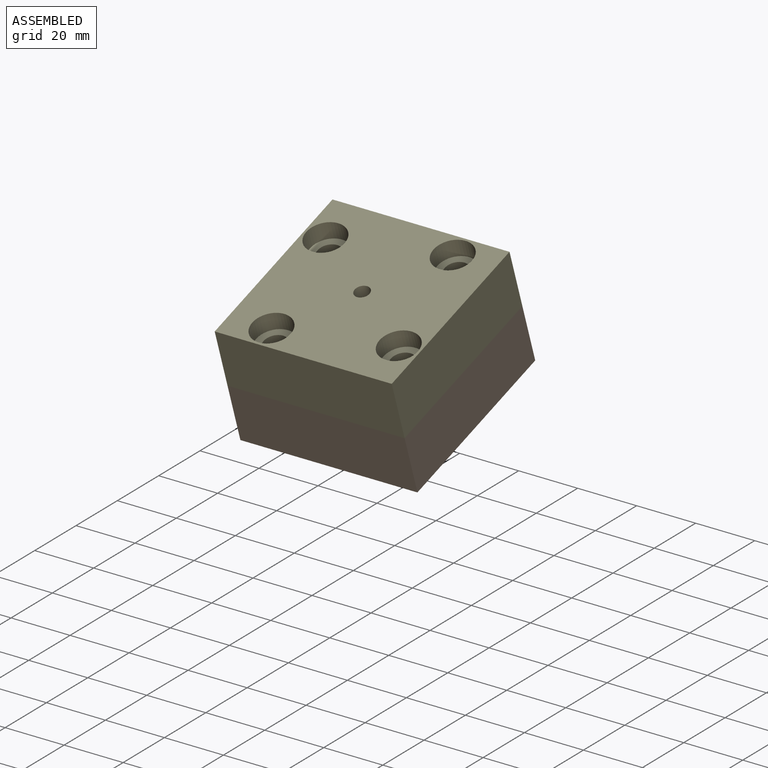
[diagram: assembled view]
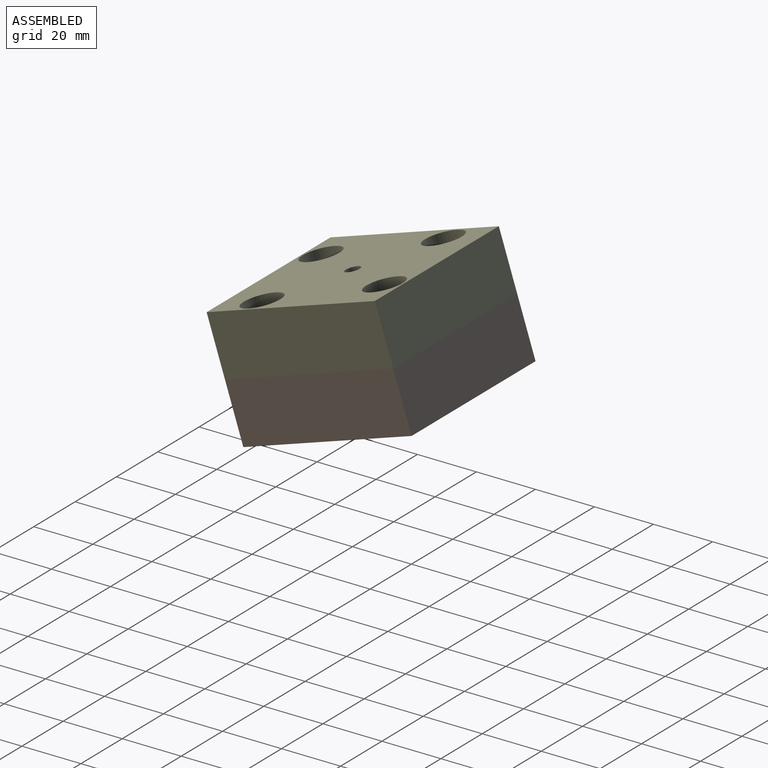
[diagram: assembled view, second angle]
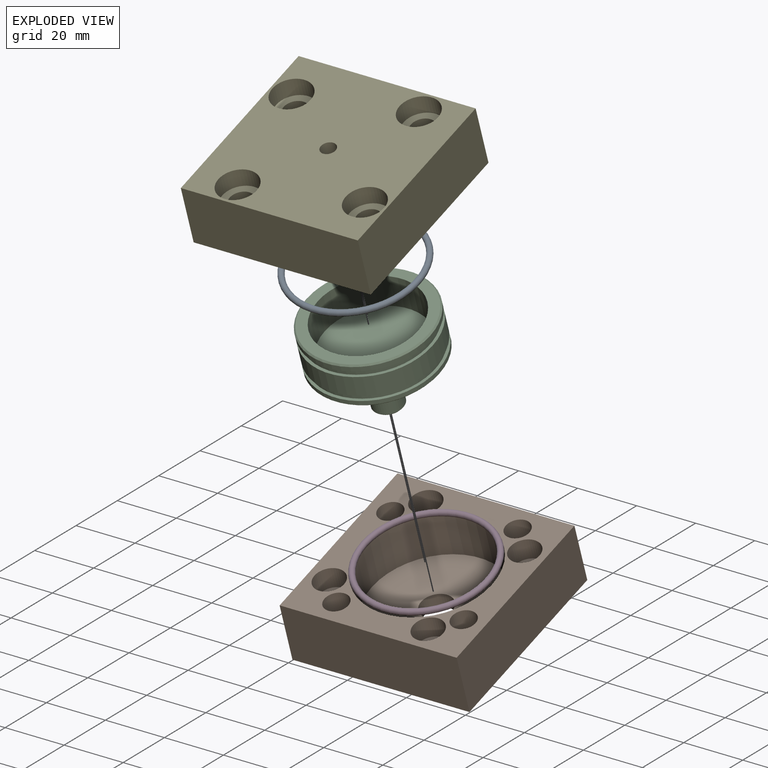
[diagram: exploded view]
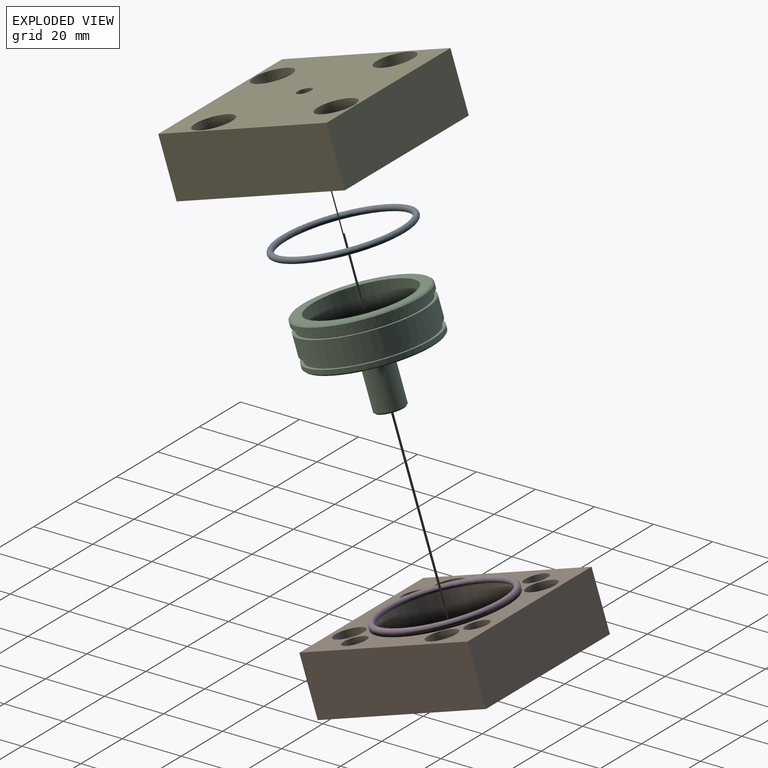
[diagram: exploded view, second angle]
ASSEMBLY  parts=5 mates=4
PART A: 1 faces, bbox 47.6x47.6x2 mm
  f0: torus R=21mm, axis (0,0,-1), area 829mm2
PART B: 25 faces, bbox 60x60x20 mm
  f0: cylinder r=3mm len=13mm, axis (0,0,1), area 245mm2, adj f9,f24
  f1: cylinder r=3mm len=13mm, axis (0,0,1), area 245mm2, adj f9,f22
  f2: cylinder r=3mm len=13mm, axis (0,0,1), area 245mm2, adj f9,f20
  f3: cylinder r=3mm len=13mm, axis (0,0,1), area 245mm2, adj f9,f18
  f4: plane 60x20mm, normal (1,0,0), area 1200mm2, adj f5,f7,f8,f9
  f5: plane 60x20mm, normal (0,1,0), area 1200mm2, adj f4,f6,f8,f9
  f6: plane 60x20mm, normal (-1,0,0), area 1200mm2, adj f5,f7,f8,f9
  f7: plane 60x20mm, normal (0,-1,0), area 1200mm2, adj f4,f6,f8,f9
  f8: plane 60x60mm, normal (0,0,1), area 1564.2mm2, adj f4,f5,f6,f7,f10,f13,f14,f15
  f9: plane 60x60mm, normal (0,0,-1), area 3199.3mm2, adj f0,f1,f2,f3,f4,f5,f6,f7
  f10: cylinder r=22mm len=44mm, axis (0,0,1), area 2073.5mm2, adj f8,f11
  f11: plane 44x44mm, normal (0,0,1), area 1433.9mm2, adj f10,f12
  f12: cylinder r=5.25mm len=10.5mm, axis (0,0,1), area 164.9mm2, adj f9,f11
  f13: cylinder r=4mm len=20mm, axis (0,0,1), area 502.7mm2, adj f8,f9
  f14: cylinder r=4mm len=20mm, axis (0,0,1), area 502.7mm2, adj f8,f9
  f15: cylinder r=4mm len=20mm, axis (0,0,1), area 502.7mm2, adj f8,f9
  f16: cylinder r=4mm len=20mm, axis (0,0,1), area 502.7mm2, adj f8,f9
  f17: cylinder r=5mm len=10mm, axis (0,0,1), area 219.9mm2, adj f8,f18
  f18: plane 10x10mm, normal (0,0,1), area 50.3mm2, adj f3,f17
  f19: cylinder r=5mm len=10mm, axis (0,0,1), area 219.9mm2, adj f8,f20
  f20: plane 10x10mm, normal (0,0,1), area 50.3mm2, adj f2,f19
  f21: cylinder r=5mm len=10mm, axis (0,0,1), area 219.9mm2, adj f8,f22
  f22: plane 10x10mm, normal (0,0,1), area 50.3mm2, adj f1,f21
  f23: cylinder r=5mm len=10mm, axis (0,0,1), area 219.9mm2, adj f8,f24
  f24: plane 10x10mm, normal (0,0,1), area 50.3mm2, adj f0,f23
PART C: 18 faces, bbox 42x42x32.5 mm
  f0: cylinder r=21mm len=42mm, axis (0,0,-1), area 219.9mm2, adj f6,f17
  f1: cylinder r=17mm len=34mm, axis (0,0,-1), area 1175mm2, adj f2,f3
  f2: plane 41x41mm, normal (0,0,1), area 412.3mm2, adj f1,f17
  f3: plane 34x34mm, normal (0,0,1), area 907.9mm2, adj f1
  f4: plane 42x42mm, normal (0,0,1), area 128.8mm2, adj f5,f7
  f5: cylinder r=20mm len=40mm, axis (0,0,-1), area 251.3mm2, adj f4,f6
  f6: plane 42x42mm, normal (0,0,-1), area 128.8mm2, adj f0,f5
  f7: cylinder r=21mm len=42mm, axis (0,0,-1), area 901.7mm2, adj f4,f10
  f8: plane 42x42mm, normal (0,0,1), area 128.8mm2, adj f9,f12
  f9: cylinder r=20mm len=40mm, axis (0,0,-1), area 251.3mm2, adj f8,f10
  f10: plane 42x42mm, normal (0,0,-1), area 128.8mm2, adj f7,f9
  f11: plane 41x41mm, normal (0,0,-1), area 1241.7mm2, adj f13,f16
  f12: cylinder r=21mm len=42mm, axis (0,0,-1), area 197.9mm2, adj f8,f16
  f13: cylinder r=5mm len=17mm, axis (0,0,1), area 534.1mm2, adj f11,f15
  f14: plane 9x9mm, normal (0,0,-1), area 63.6mm2, adj f15
  f15: cone r=4.5mm half-angle=45deg, axis (0,0,1), area 21.1mm2, adj f13,f14
  f16: cone r=21mm half-angle=45deg, axis (0,0,1), area 92.2mm2, adj f11,f12
  f17: cone r=20.5mm half-angle=45deg, axis (0,0,-1), area 92.2mm2, adj f0,f2
PART D: same geometry as A
PART E: 21 faces, bbox 60x60x20 mm
  f0: cylinder r=4mm len=14mm, axis (0,0,-1), area 351.9mm2, adj f10,f20
  f1: cylinder r=4mm len=14mm, axis (0,0,-1), area 351.9mm2, adj f10,f18
  f2: cylinder r=4mm len=14mm, axis (0,0,-1), area 351.9mm2, adj f10,f16
  f3: cylinder r=4mm len=14mm, axis (0,0,-1), area 351.9mm2, adj f10,f14
  f4: cylinder r=2.5mm len=9mm, axis (0,0,-1), area 141.4mm2, adj f9,f12
  f5: plane 60x20mm, normal (-1,0,0), area 1200mm2, adj f6,f8,f9,f10
  f6: plane 60x20mm, normal (0,-1,0), area 1200mm2, adj f5,f7,f9,f10
  f7: plane 60x20mm, normal (1,0,0), area 1200mm2, adj f6,f8,f9,f10
  f8: plane 60x20mm, normal (0,1,0), area 1200mm2, adj f5,f7,f9,f10
  f9: plane 60x60mm, normal (0,0,1), area 3049.4mm2, adj f4,f5,f6,f7,f8,f13,f15,f17
  f10: plane 60x60mm, normal (0,0,-1), area 1878.4mm2, adj f0,f1,f2,f3,f5,f6,f7,f8
  f11: cylinder r=22mm len=44mm, axis (0,0,-1), area 1520.5mm2, adj f10,f12
  f12: plane 44x44mm, normal (0,0,-1), area 1500.9mm2, adj f4,f11
  f13: cylinder r=6.5mm len=13mm, axis (0,0,1), area 245mm2, adj f9,f14
  f14: plane 13x13mm, normal (0,0,1), area 82.5mm2, adj f3,f13
  f15: cylinder r=6.5mm len=13mm, axis (0,0,1), area 245mm2, adj f9,f16
  f16: plane 13x13mm, normal (0,0,1), area 82.5mm2, adj f2,f15
  f17: cylinder r=6.5mm len=13mm, axis (0,0,1), area 245mm2, adj f9,f18
  f18: plane 13x13mm, normal (0,0,1), area 82.5mm2, adj f1,f17
  f19: cylinder r=6.5mm len=13mm, axis (0,0,1), area 245mm2, adj f9,f20
  f20: plane 13x13mm, normal (0,0,1), area 82.5mm2, adj f0,f19
PLACE A rot(axis=(1,0,0),18.1deg) t=(11.75,14.13,43.79)mm
PLACE B rot(axis=(1,0,0),18.1deg) t=(11.75,22.79,17.34)mm
PLACE C rot(axis=(1,0,0),18.1deg) t=(11.75,17.82,32.55)mm
PLACE D rot(axis=(1,0,0),18.1deg) t=(11.75,16.88,35.4)mm
PLACE E rot(axis=(1,0,0),18.1deg) t=(11.75,16.57,36.35)mm
MATE slider C.f0 <-> B.f10  axis (0,0.31,-0.95) through (11.75,15.51,39.59)mm
MATE fastened B.f15 <-> E.f1  axis (0,-0.31,0.95) through (34.53,1.79,31.51)mm
MATE fastened D.f0 <-> C.f0  axis (0,0.31,-0.95) through (11.75,16.88,35.4)mm
MATE fastened A.f0 <-> C.f0  axis (0,0.31,-0.95) through (11.75,14.13,43.79)mm
